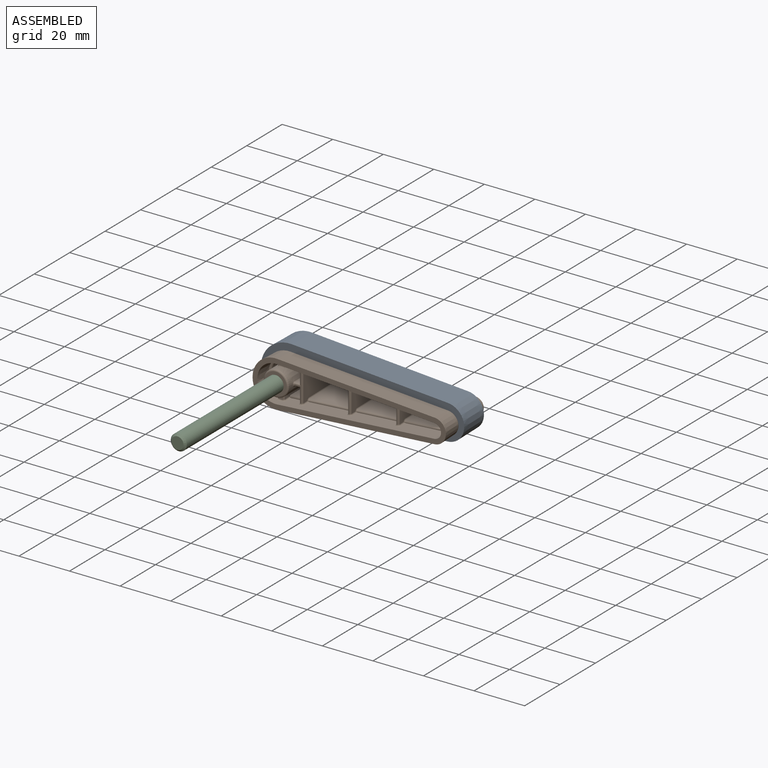
[diagram: assembled view]
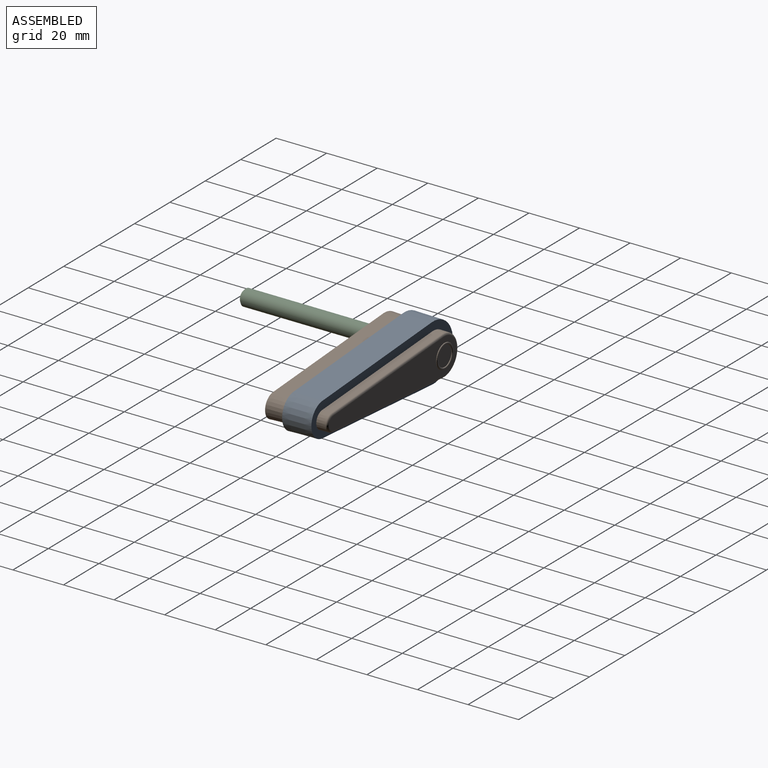
[diagram: assembled view, second angle]
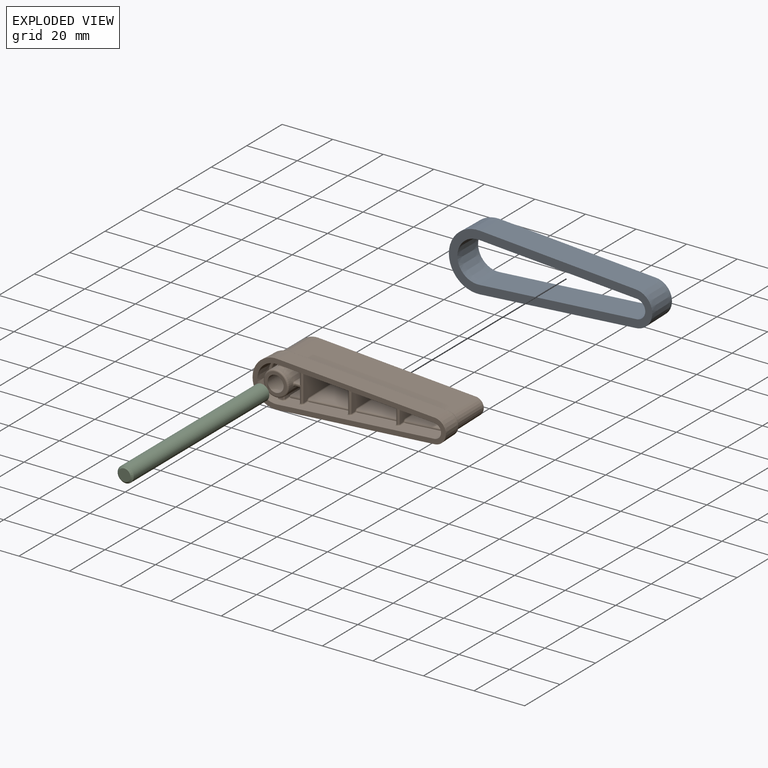
[diagram: exploded view]
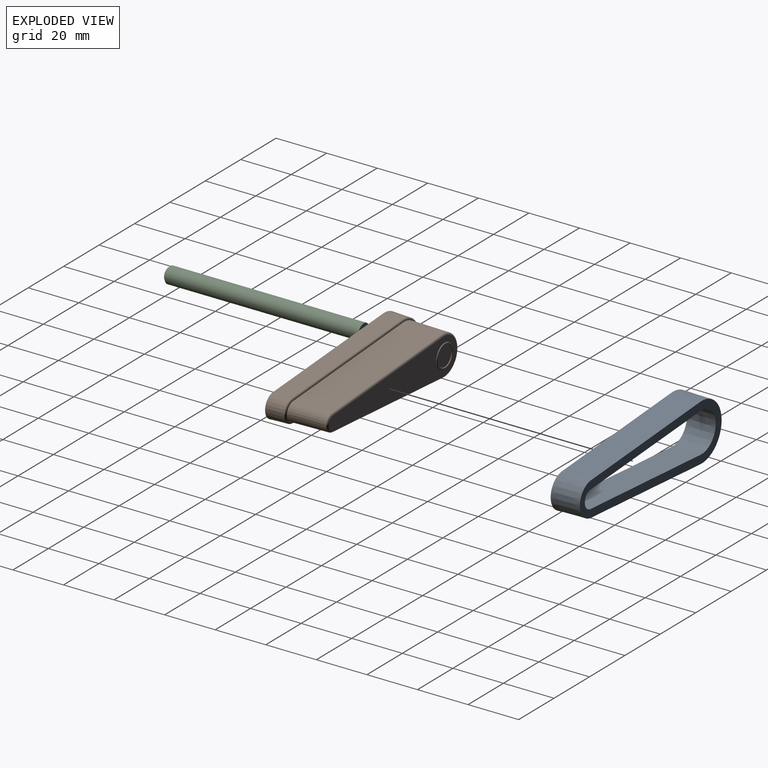
[diagram: exploded view, second angle]
ASSEMBLY  parts=3 mates=4
PART A: 10 faces, bbox 80.4x11.4x22.8 mm
  f0: plane 80.04x22.41mm, normal (0,1,0), area 557.6mm2, adj f2,f3,f4,f5,f6,f7,f8,f9
  f1: plane 80.44x22.81mm, normal (0,-1,0), area 561.5mm2, adj f2,f3,f4,f5,f6,f7,f8,f9
  f2: cone r=11.4mm half-angle=1deg, axis (0,-1,0), area 424.7mm2, adj f0,f1,f3,f5
  f3: plane 61.81x11.43mm, normal (0.07,0.02,1), area 708.2mm2, adj f0,f1,f2,f4
  f4: cone r=6.92mm half-angle=1deg, axis (0,-1,0), area 233.7mm2, adj f0,f1,f3,f5
  f5: plane 61.81x11.43mm, normal (0.07,0.02,-1), area 708.2mm2, adj f0,f1,f2,f4
  f6: cone r=8.05mm half-angle=1deg, axis (0,-1,0), area 298.3mm2, adj f0,f1,f7,f9
  f7: plane 62.29x11.43mm, normal (-0.07,-0.02,-1), area 713.7mm2, adj f0,f1,f6,f8
  f8: cone r=3.68mm half-angle=1deg, axis (0,-1,0), area 123mm2, adj f0,f1,f7,f9
  f9: plane 62.29x11.43mm, normal (-0.07,-0.02,1), area 713.7mm2, adj f0,f1,f6,f8
PART B: 192 faces, bbox 77.4x42.5x19.5 mm
  f0: plane 72.27x14.05mm, normal (0,1,0), area 626mm2, adj f40,f41,f42,f43,f187
  f1: plane 15.5x15.25mm, normal (-0.07,-0.02,-1), area 236.8mm2, adj f2,f4,f48,f181
  f2: cylinder r=0.64mm len=15.62mm, axis (-1,0,0.07), area 15.4mm2, adj f1,f5,f56,f184
  f3: plane 15.5x15.25mm, normal (-0.07,-0.02,1), area 236.8mm2, adj f4,f7,f48,f165
  f4: plane 17.45x5.23mm, normal (0,-1,0), area 70.2mm2, adj f1,f3,f48,f79,f165,f181
  f5: plane 18.04x7.44mm, normal (0,-1,0), area 7.9mm2, adj f2,f7,f53,f54,f55,f56,f169,f173
  f6: plane 16.76x1.37mm, normal (0,-1,0), area 3.4mm2, adj f11,f55,f147,f152,f172
  f7: cylinder r=0.64mm len=15.62mm, axis (1,0,0.07), area 15.4mm2, adj f3,f5,f56,f168
  f8: plane 5.83x5.3mm, normal (0,-1,0), area 17.8mm2, adj f9,f28,f59,f65,f76,f86,f106,f112
  f9: plane 18.38x5.49mm, normal (-1,0,0), area 83.9mm2, adj f8,f76,f106,f107,f109,f110
  f10: plane 16.76x15.25mm, normal (-0.07,-0.02,-1), area 256.3mm2, adj f11,f13,f143,f167
  f11: cylinder r=0.64mm len=16.89mm, axis (-1,0,0.07), area 16.6mm2, adj f6,f10,f148,f171
  f12: plane 16.76x15.25mm, normal (-0.07,-0.02,1), area 256.3mm2, adj f13,f16,f155,f162
  f13: plane 17.78x7.9mm, normal (0,-1,0), area 119.3mm2, adj f10,f12,f74,f78,f143,f155,f162,f167
  f14: plane 16.76x1.37mm, normal (0,-1,0), area 3.4mm2, adj f16,f53,f159,f161,f163
  f15: plane 16.76x1.37mm, normal (0,-1,0), area 3.4mm2, adj f18,f55,f115,f119,f140
  f16: cylinder r=0.64mm len=16.89mm, axis (1,0,0.07), area 16.6mm2, adj f12,f14,f158,f164
  f17: plane 16.76x15.25mm, normal (-0.07,-0.02,-1), area 256.3mm2, adj f18,f20,f111,f138
  f18: cylinder r=0.64mm len=16.89mm, axis (-1,0,0.07), area 16.6mm2, adj f15,f17,f116,f139
  f19: plane 16.76x15.25mm, normal (-0.07,-0.02,1), area 256.3mm2, adj f20,f23,f120,f141
  f20: plane 17.78x10.57mm, normal (0,-1,0), area 166.7mm2, adj f17,f19,f71,f73,f111,f120,f138,f141
  f21: plane 16.76x1.37mm, normal (0,-1,0), area 3.4mm2, adj f23,f53,f125,f128,f144
  f22: plane 5.35x0.55mm, normal (0,-1,0), area 1.1mm2, adj f29,f55,f80,f108
  f23: cylinder r=0.64mm len=16.89mm, axis (1,0,0.07), area 16.6mm2, adj f19,f21,f124,f145
  f24: cone r=6.15mm half-angle=1deg, axis (0,-1,0), area 243.9mm2, adj f25,f27,f64,f68
  f25: plane 11.49x4.43mm, normal (0,-1,0), area 10.7mm2, adj f24,f59,f64,f68,f92,f99
  f26: plane 13.51x5.52mm, normal (0,-1,0), area 3.7mm2, adj f27,f52,f83,f93
  f27: torus R=6.8mm, axis (0,-1,0), area 17.2mm2, adj f24,f26,f64,f68,f83,f93
  f28: plane 15.25x5.5mm, normal (-0.07,-0.02,-1), area 82mm2, adj f8,f29,f65,f106
  f29: cylinder r=0.64mm len=5.57mm, axis (-1,0,0.07), area 5.4mm2, adj f22,f28,f65,f80,f107
  f30: cone r=8.05mm half-angle=1deg, axis (0,-1,0), area 393.2mm2, adj f31,f33,f34,f43
  f31: plane 62.3x15.13mm, normal (0.07,0.02,1), area 944.5mm2, adj f30,f32,f34,f42
  f32: cone r=3.68mm half-angle=1deg, axis (0,-1,0), area 161.3mm2, adj f31,f33,f34,f40
  f33: plane 62.3x15.13mm, normal (0.07,0.02,-1), area 944.5mm2, adj f30,f32,f34,f41
  f34: plane 74.68x16.46mm, normal (0,1,0), area 29.4mm2, adj f30,f31,f32,f33,f44,f45,f46,f47
  f35: cone r=8.85mm half-angle=2deg, axis (0,-1,0), area 216.3mm2, adj f36,f38,f39,f44
  f36: plane 62.3x7.32mm, normal (0.07,0.03,-1), area 457.6mm2, adj f35,f37,f39,f45
  f37: cone r=4.48mm half-angle=2deg, axis (0,-1,0), area 101.8mm2, adj f36,f38,f39,f47
  f38: plane 62.3x7.32mm, normal (0.07,0.03,1), area 457.6mm2, adj f35,f37,f39,f46
  f39: plane 76.46x18.25mm, normal (0,-1,0), area 310.9mm2, adj f35,f36,f37,f38,f52,f53,f54,f55
  f40: torus R=2.66mm, axis (0,1,0), area 11.2mm2, adj f0,f32,f41,f42
  f41: cylinder r=0.76mm len=62.33mm, axis (-1,0,-0.07), area 73.9mm2, adj f0,f33,f40,f43
  f42: cylinder r=0.76mm len=62.33mm, axis (1,0,-0.07), area 73.9mm2, adj f0,f31,f40,f43
  f43: torus R=7.03mm, axis (0,1,0), area 29.2mm2, adj f0,f30,f41,f42
  f44: torus R=8.23mm, axis (0,-1,0), area 27.6mm2, adj f34,f35,f45,f46
  f45: cylinder r=0.64mm len=62.33mm, axis (-1,0,-0.07), area 60.9mm2, adj f34,f36,f44,f47
  f46: cylinder r=0.64mm len=62.33mm, axis (1,0,-0.07), area 60.9mm2, adj f34,f38,f44,f47
  f47: torus R=3.86mm, axis (0,-1,0), area 12.5mm2, adj f34,f37,f45,f46
  f48: cone r=1.78mm half-angle=1deg, axis (0,-1,0), area 76.3mm2, adj f1,f3,f4,f56
  f49: plane 15.25x5.5mm, normal (-0.07,-0.02,1), area 82mm2, adj f50,f57,f67,f131
  f50: plane 5.83x5.3mm, normal (0,-1,0), area 17.8mm2, adj f49,f59,f67,f70,f75,f105,f121,f131
  f51: plane 5.35x0.55mm, normal (0,-1,0), area 1.1mm2, adj f53,f57,f96,f134
  f52: cone r=6.94mm half-angle=2deg, axis (0,-1,0), area 124.7mm2, adj f26,f39,f53,f55,f83,f84,f87,f93
  f53: plane 62.57x6.31mm, normal (-0.07,-0.03,1), area 349.6mm2, adj f5,f14,f21,f39,f51,f52,f54,f96
  f54: cone r=2.57mm half-angle=2deg, axis (0,-1,0), area 49.7mm2, adj f5,f39,f53,f55
  f55: plane 62.6x6.35mm, normal (-0.07,-0.03,-1), area 349.6mm2, adj f5,f6,f15,f22,f39,f52,f54,f80
  f56: torus R=2.43mm, axis (0,-1,0), area 6mm2, adj f2,f5,f7,f48
  f57: cylinder r=0.64mm len=5.57mm, axis (1,0,0.07), area 5.4mm2, adj f49,f51,f67,f96,f135
  f58: plane 8.65x8.65mm, normal (0,-1,0), area 27.1mm2, adj f60,f62
  f59: cone r=4.95mm half-angle=0.5deg, axis (0,1,0), area 496.4mm2, adj f8,f25,f50,f60,f86,f88,f90,f91
  f60: torus R=4.32mm, axis (0,-1,0), area 29.5mm2, adj f58,f59
  f61: plane 6.35x6.35mm, normal (0,-1,0), area 31.7mm2, adj f62
  f62: cylinder r=3.17mm len=21.91mm, axis (0,-1,0), area 437mm2, adj f58,f61
  f63: plane 1.54x1.19mm, normal (0,-1,0), area 1.8mm2, adj f81,f84,f85,f89,f90
  f64: plane 18.41x1.17mm, normal (-1,-0.02,0), area 12.9mm2, adj f24,f25,f27,f83,f89,f92
  f65: plane 18.41x1.31mm, normal (1,-0.02,0), area 14.8mm2, adj f8,f28,f29,f80,f85,f86
  f66: plane 1.54x1.19mm, normal (0,-1,0), area 1.8mm2, adj f94,f97,f98,f102,f103
  f67: plane 18.41x1.31mm, normal (1,-0.02,0), area 14.8mm2, adj f49,f50,f57,f96,f102,f105
  f68: plane 18.41x1.17mm, normal (-1,-0.02,0), area 12.9mm2, adj f24,f25,f27,f93,f98,f99
  f69: plane 12.18x2.58mm, normal (0,-1,0), area 3.7mm2, adj f109,f113,f118,f122,f127,f129,f132,f133
  f70: plane 18.38x5.49mm, normal (-1,0,0), area 83.9mm2, adj f50,f75,f131,f132,f135,f137
  f71: plane 18.38x11.93mm, normal (1,0,0), area 185.3mm2, adj f20,f111,f116,f119,f120,f124,f127,f128
  f72: plane 9.51x0.25mm, normal (0,-1,0), area 2.4mm2, adj f150,f151,f156,f157
  f73: plane 18.38x9.59mm, normal (-1,0,0), area 142.2mm2, adj f20,f138,f139,f141,f142,f145,f149,f150
  f74: plane 18.38x9.27mm, normal (1,0,0), area 136.3mm2, adj f13,f143,f148,f152,f155,f157,f158,f161
  f75: plane 18.38x1.93mm, normal (0,0,-1), area 34mm2, adj f50,f70,f121,f129
  f76: plane 18.38x1.93mm, normal (0,0,1), area 34mm2, adj f8,f9,f112,f113
  f77: plane 6.85x0.25mm, normal (0,-1,0), area 1.7mm2, adj f174,f175,f179,f180
  f78: plane 18.38x6.92mm, normal (-1,0,0), area 93.2mm2, adj f13,f162,f164,f166,f167,f171,f175,f176
  f79: plane 18.38x6.6mm, normal (1,0,0), area 87.3mm2, adj f4,f165,f168,f173,f179,f181,f184,f185
  f80: cylinder r=0.51mm len=2.63mm, axis (-0.02,-1,0.04), area 2.1mm2, adj f22,f29,f55,f65,f82
  f81: cylinder r=0.51mm len=0.53mm, axis (-1,0,0.07), area 0.2mm2, adj f55,f63,f82,f84
  f82: bspline ~1.7x1.07mm, area 1mm2, adj f55,f80,f81,f85
  f83: bspline ~16.89x1.35mm, area 2.4mm2, adj f26,f27,f52,f64,f87
  f84: torus R=6.62mm, axis (0,-1,0), area 1mm2, adj f52,f63,f81,f87
  f85: cylinder r=0.51mm len=1.39mm, axis (0,0,-1), area 1mm2, adj f63,f65,f82,f88
  f86: bspline ~18.46x0.64mm, area 11.3mm2, adj f8,f59,f65,f88
  f87: bspline ~1.3x1.22mm, area 1mm2, adj f52,f83,f84,f89
  f88: bspline ~1.22x1.08mm, area 0.8mm2, adj f59,f85,f86,f90
  f89: cylinder r=0.51mm len=1.38mm, axis (0,0,-1), area 0.9mm2, adj f63,f64,f87,f91
  f90: torus R=5.48mm, axis (0,-1,0), area 1.2mm2, adj f59,f63,f88,f91
  f91: bspline ~1.2x1.13mm, area 0.8mm2, adj f59,f89,f90,f92
  f92: bspline ~18.46x0.64mm, area 11.3mm2, adj f25,f59,f64,f91
  f93: bspline ~16.89x1.35mm, area 2.4mm2, adj f26,f27,f52,f68,f95
  f94: torus R=6.62mm, axis (0,-1,0), area 1mm2, adj f52,f66,f95,f97
  f95: bspline ~1.34x1.2mm, area 1mm2, adj f52,f93,f94,f98
  f96: cylinder r=0.51mm len=2.63mm, axis (-0.02,-1,-0.04), area 2.1mm2, adj f51,f53,f57,f67,f100
  f97: cylinder r=0.51mm len=0.53mm, axis (1,0,0.07), area 0.2mm2, adj f53,f66,f94,f100
  f98: cylinder r=0.51mm len=1.38mm, axis (0,0,1), area 0.9mm2, adj f66,f68,f95,f101
  f99: bspline ~18.46x0.64mm, area 11.3mm2, adj f25,f59,f68,f101
  f100: bspline ~1.63x1.08mm, area 1mm2, adj f53,f96,f97,f102
  f101: bspline ~1.22x1.08mm, area 0.8mm2, adj f59,f98,f99,f103
  f102: cylinder r=0.51mm len=1.39mm, axis (0,0,1), area 1mm2, adj f66,f67,f100,f104
  f103: torus R=5.48mm, axis (0,-1,0), area 1.2mm2, adj f59,f66,f101,f104
  f104: bspline ~1.2x1.13mm, area 0.8mm2, adj f59,f102,f103,f105
  f105: bspline ~18.46x0.64mm, area 11.3mm2, adj f50,f59,f67,f104
  f106: cylinder r=0.51mm len=15.27mm, axis (0,1,-0.02), area 11.6mm2, adj f8,f9,f28,f107
  f107: bspline ~1.15x1.15mm, area 1mm2, adj f9,f29,f106,f108,f110
  f108: cylinder r=0.51mm len=0.41mm, axis (0,0,1), area 0.1mm2, adj f22,f55,f107,f110
  f109: cylinder r=0.51mm len=6mm, axis (0,0,1), area 4.6mm2, adj f9,f69,f113,f114
  f110: cylinder r=0.51mm len=2.51mm, axis (0,1,-0.03), area 1.8mm2, adj f9,f55,f107,f108,f114
  f111: cylinder r=0.51mm len=15.27mm, axis (0,-1,0.02), area 12.7mm2, adj f17,f20,f71,f116
  f112: bspline ~42.15x0.87mm, area 12.7mm2, adj f8,f59,f76,f117
  f113: cylinder r=0.51mm len=2.44mm, axis (1,0,0), area 1.7mm2, adj f69,f76,f109,f117
  f114: bspline ~1.02x1.02mm, area 0.7mm2, adj f55,f109,f110,f118
  f115: cylinder r=0.51mm len=0.41mm, axis (0,0,-1), area 0mm2, adj f15,f116,f119
  f116: bspline ~1.17x1.15mm, area 1mm2, adj f18,f71,f111,f115,f119
  f117: bspline ~1.18x1.13mm, area 0.8mm2, adj f59,f112,f113,f122
  f118: cylinder r=0.51mm len=0.52mm, axis (-1,0,0.07), area 0.2mm2, adj f55,f69,f114,f123
  f119: cylinder r=0.51mm len=2.51mm, axis (0,-1,0.03), area 1.9mm2, adj f15,f55,f71,f115,f116,f123
  f120: cylinder r=0.51mm len=15.27mm, axis (0,1,0.02), area 12.7mm2, adj f19,f20,f71,f124
  f121: bspline ~42.15x0.87mm, area 12.7mm2, adj f50,f59,f75,f126
  f122: torus R=5.48mm, axis (0,-1,0), area 0.2mm2, adj f59,f69,f117,f126
  f123: bspline ~1.7x1.07mm, area 1.1mm2, adj f55,f118,f119,f127
  f124: bspline ~1.29x1.17mm, area 1mm2, adj f23,f71,f120,f125,f128
  f125: cylinder r=0.51mm len=0.41mm, axis (0,0,-1), area 0mm2, adj f21,f124,f128
  f126: bspline ~1.24x1.07mm, area 0.8mm2, adj f59,f121,f122,f129
  f127: cylinder r=0.51mm len=12.15mm, axis (0,0,-1), area 9.6mm2, adj f69,f71,f123,f130
  f128: cylinder r=0.51mm len=2.51mm, axis (0,1,0.03), area 1.9mm2, adj f21,f53,f71,f124,f125,f130
  f129: cylinder r=0.51mm len=2.44mm, axis (-1,0,0), area 1.7mm2, adj f69,f75,f126,f132
  f130: bspline ~1.13x1.12mm, area 0.9mm2, adj f53,f127,f128,f133
  f131: cylinder r=0.51mm len=15.27mm, axis (0,-1,-0.02), area 11.6mm2, adj f49,f50,f70,f135
  f132: cylinder r=0.51mm len=6mm, axis (0,0,1), area 4.6mm2, adj f69,f70,f129,f136
  f133: cylinder r=0.51mm len=0.52mm, axis (1,0,0.07), area 0.2mm2, adj f53,f69,f130,f136
  f134: cylinder r=0.51mm len=0.41mm, axis (0,0,1), area 0.1mm2, adj f51,f53,f135,f137
  f135: bspline ~1.15x1.15mm, area 1mm2, adj f57,f70,f131,f134,f137
  f136: bspline ~1.13x1.12mm, area 0.8mm2, adj f53,f132,f133,f137
  f137: cylinder r=0.51mm len=2.51mm, axis (0,-1,-0.03), area 1.8mm2, adj f53,f70,f134,f135,f136
  f138: cylinder r=0.51mm len=15.27mm, axis (0,1,-0.02), area 11.6mm2, adj f17,f20,f73,f139
  f139: bspline ~1.15x1.15mm, area 1mm2, adj f18,f73,f138,f140,f142
  f140: cylinder r=0.51mm len=0.41mm, axis (0,0,1), area 0.1mm2, adj f15,f55,f139,f142
  f141: cylinder r=0.51mm len=15.27mm, axis (0,-1,-0.02), area 11.6mm2, adj f19,f20,f73,f145
  f142: cylinder r=0.51mm len=2.51mm, axis (0,1,-0.03), area 1.8mm2, adj f55,f73,f139,f140,f146
  f143: cylinder r=0.51mm len=15.27mm, axis (0,-1,0.02), area 12.7mm2, adj f10,f13,f74,f148
  f144: cylinder r=0.51mm len=0.41mm, axis (0,0,1), area 0.1mm2, adj f21,f53,f145,f149
  f145: bspline ~1.15x1.15mm, area 1mm2, adj f23,f73,f141,f144,f149
  f146: bspline ~1.02x1.02mm, area 0.7mm2, adj f55,f142,f150,f151
  f147: cylinder r=0.51mm len=0.41mm, axis (0,0,-1), area 0mm2, adj f6,f148,f152
  f148: bspline ~1.17x1.15mm, area 1mm2, adj f11,f74,f143,f147,f152
  f149: cylinder r=0.51mm len=2.51mm, axis (0,-1,-0.03), area 1.8mm2, adj f53,f73,f144,f145,f153
  f150: cylinder r=0.51mm len=9.59mm, axis (0,0,1), area 7.6mm2, adj f72,f73,f146,f153
  f151: cylinder r=0.51mm len=0.52mm, axis (-1,0,0.07), area 0.2mm2, adj f55,f72,f146,f154
  f152: cylinder r=0.51mm len=2.51mm, axis (0,-1,0.03), area 1.9mm2, adj f6,f55,f74,f147,f148,f154
  f153: bspline ~1.13x1.12mm, area 0.8mm2, adj f53,f149,f150,f156
  f154: bspline ~1.7x1.07mm, area 1.1mm2, adj f55,f151,f152,f157
  f155: cylinder r=0.51mm len=15.27mm, axis (0,1,0.02), area 12.7mm2, adj f12,f13,f74,f158
  f156: cylinder r=0.51mm len=0.52mm, axis (1,0,0.07), area 0.2mm2, adj f53,f72,f153,f160
  f157: cylinder r=0.51mm len=9.48mm, axis (0,0,-1), area 7.5mm2, adj f72,f74,f154,f160
  f158: bspline ~1.29x1.17mm, area 1mm2, adj f16,f74,f155,f159,f161
  f159: cylinder r=0.51mm len=0.41mm, axis (0,0,-1), area 0mm2, adj f14,f158,f161
  f160: bspline ~1.13x1.12mm, area 0.9mm2, adj f53,f156,f157,f161
  f161: cylinder r=0.51mm len=2.51mm, axis (0,1,0.03), area 1.9mm2, adj f14,f53,f74,f158,f159,f160
  f162: cylinder r=0.51mm len=15.27mm, axis (0,-1,-0.02), area 11.6mm2, adj f12,f13,f78,f164
  f163: cylinder r=0.51mm len=0.41mm, axis (0,0,1), area 0.1mm2, adj f14,f53,f164,f166
  f164: bspline ~1.15x1.15mm, area 1mm2, adj f16,f78,f162,f163,f166
  f165: cylinder r=0.51mm len=15.27mm, axis (0,1,0.02), area 12.7mm2, adj f3,f4,f79,f168
  f166: cylinder r=0.51mm len=2.51mm, axis (0,-1,-0.03), area 1.8mm2, adj f53,f78,f163,f164,f170
  f167: cylinder r=0.51mm len=15.27mm, axis (0,1,-0.02), area 11.6mm2, adj f10,f13,f78,f171
  f168: bspline ~1.29x1.17mm, area 1mm2, adj f7,f79,f165,f169,f173
  f169: cylinder r=0.51mm len=0.41mm, axis (0,0,-1), area 0mm2, adj f5,f168,f173
  f170: bspline ~1.13x1.12mm, area 0.8mm2, adj f53,f166,f174,f175
  f171: bspline ~1.15x1.15mm, area 1mm2, adj f11,f78,f167,f172,f176
  f172: cylinder r=0.51mm len=0.41mm, axis (0,0,1), area 0.1mm2, adj f6,f55,f171,f176
  f173: cylinder r=0.51mm len=2.51mm, axis (0,1,0.03), area 1.9mm2, adj f5,f53,f79,f168,f169,f177
  f174: cylinder r=0.51mm len=0.52mm, axis (1,0,0.07), area 0.2mm2, adj f53,f77,f170,f177
  f175: cylinder r=0.51mm len=6.92mm, axis (0,0,1), area 5.5mm2, adj f77,f78,f170,f178
  f176: cylinder r=0.51mm len=2.51mm, axis (0,1,-0.03), area 1.8mm2, adj f55,f78,f171,f172,f178
  f177: bspline ~1.13x1.12mm, area 0.9mm2, adj f53,f173,f174,f179
  f178: bspline ~1.02x1.02mm, area 0.7mm2, adj f55,f175,f176,f180
  f179: cylinder r=0.51mm len=6.81mm, axis (0,0,-1), area 5.4mm2, adj f77,f79,f177,f182
  f180: cylinder r=0.51mm len=0.52mm, axis (-1,0,0.07), area 0.2mm2, adj f55,f77,f178,f182
  f181: cylinder r=0.51mm len=15.27mm, axis (0,-1,0.02), area 12.7mm2, adj f1,f4,f79,f184
  f182: bspline ~1.47x1.12mm, area 1mm2, adj f55,f179,f180,f185
  f183: cylinder r=0.51mm len=0.41mm, axis (0,0,-1), area 0mm2, adj f5,f184,f185
  f184: bspline ~1.17x1.15mm, area 1mm2, adj f2,f79,f181,f183,f185
  f185: cylinder r=0.51mm len=2.51mm, axis (0,-1,0.03), area 1.9mm2, adj f5,f55,f79,f182,f183,f184
  f186: plane 8.94x8.94mm, normal (0,1,0), area 7.5mm2, adj f190,f191
  f187: cone r=4.72mm half-angle=1deg, axis (0,-1,0), area 3.9mm2, adj f0,f191
  f188: cone r=3.94mm half-angle=1deg, axis (0,1,0), area 3.3mm2, adj f189,f190
  f189: plane 7.87x7.87mm, normal (0,1,0), area 48.7mm2, adj f188
  f190: torus R=4.19mm, axis (0,1,0), area 10mm2, adj f186,f188
  f191: torus R=4.47mm, axis (0,1,0), area 11.5mm2, adj f186,f187
PART C: 4 faces, bbox 6.4x6.4x77.3 mm
  f0: cylinder r=3.17mm len=76.58mm, axis (0,0,-1), area 1527.7mm2, adj f2,f3
  f1: plane 4.83x4.83mm, normal (0,0,1), area 18.3mm2, adj f3
  f2: plane 6.35x6.35mm, normal (0,0,-1), area 31.7mm2, adj f0
  f3: cone r=2.41mm half-angle=45deg, axis (0,0,-1), area 18.9mm2, adj f0,f1
PLACE A t=(-51.48,0.74,13.8)mm
PLACE B t=(-51.48,0.74,13.8)mm
PLACE C rot(axis=(0.58,0.58,-0.58),120deg) t=(-51.48,14.71,13.8)mm fixed
MATE cylindrical A.f2 <-> B.f24  axis (0,-1,0) through (-51.48,6.46,13.8)mm
MATE fastened C.f0 <-> B.f24  axis (0,1,0) through (-51.48,14.71,13.8)mm
MATE cylindrical A.f8 <-> B.f32  axis (0,-1,0) through (11.11,0.74,13.8)mm
MATE planar A.f1 <-> B.f34  axis (0,-1,0) through (-24.29,0.74,13.8)mm
